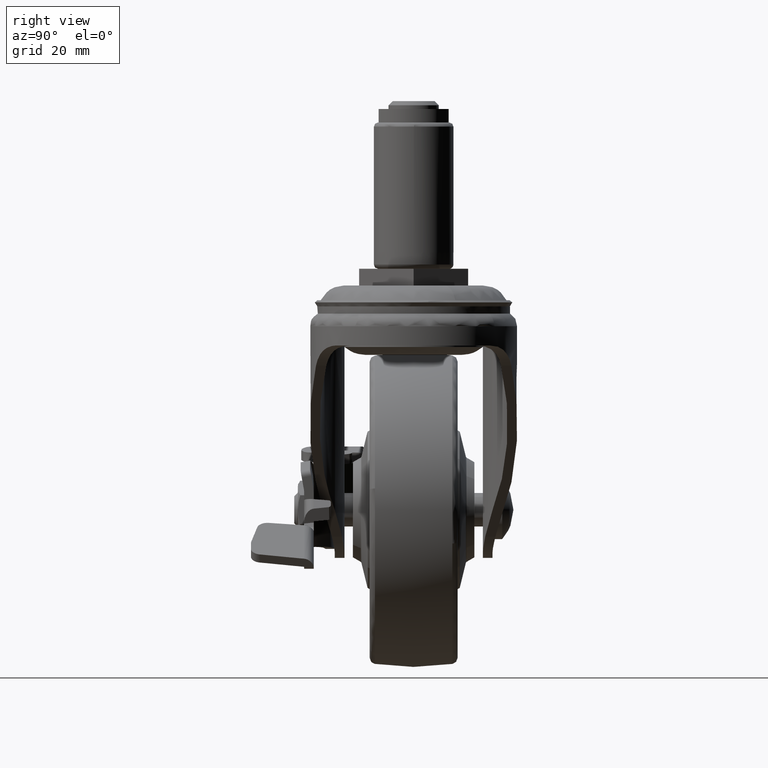
[diagram: clean part render]
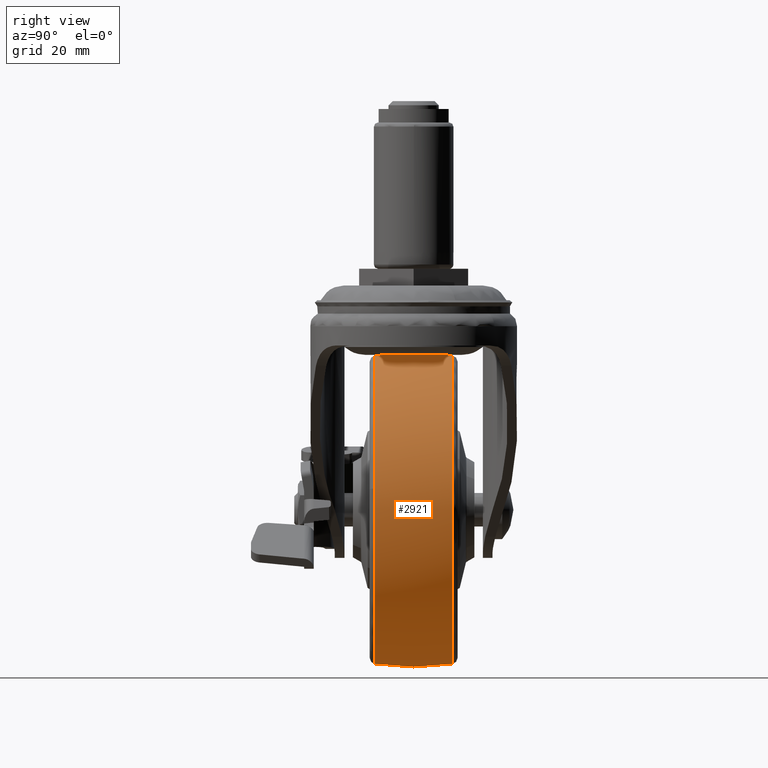
[diagram: same view with one face highlighted and labeled with its STEP entity id]
A machine part, right view. The second image highlights one B-rep face of the part: STEP entity #2921.
In plain terms, the highlighted face is a freeform B-spline surface patch.
Its self-contained STEP definition (entity closure, byte-faithful):
#2059=CARTESIAN_POINT('',(-25.0,9.230739119325698,-20.714632487062062));
#2060=VERTEX_POINT('',#2059);
#2077=CARTESIAN_POINT('',(10.894347431094950,9.230757639118954,-65.549100780943292));
#2078=VERTEX_POINT('',#2077);
#2079=CARTESIAN_POINT('',(10.894347431094950,9.230757639118954,-65.549100780943292));
#2080=CARTESIAN_POINT('',(11.382701974570249,9.230756744074689,-63.372309758172051));
#2081=CARTESIAN_POINT('',(11.827760479138320,9.230755338301995,-59.954848230577973));
#2082=CARTESIAN_POINT('',(11.774480901627671,9.230753216807116,-54.800707368002662));
#2083=CARTESIAN_POINT('',(11.120334110106990,9.230751144258019,-49.768182816137710));
#2084=CARTESIAN_POINT('',(9.683052751946716,9.230749135377884,-44.893865896167299));
#2085=CARTESIAN_POINT('',(7.425094527471202,9.230747067884369,-39.880826859736601));
#2086=CARTESIAN_POINT('',(4.773024856790674,9.230745320503417,-35.647302662544789));
#2087=CARTESIAN_POINT('',(0.776616494826311,9.230743413233489,-31.031349552262551));
#2088=CARTESIAN_POINT('',(-3.719916727387318,9.230741857821784,-27.272516106181339));
#2089=CARTESIAN_POINT('',(-8.709965495961042,9.230740659564363,-24.383641218926702));
#2090=CARTESIAN_POINT('',(-13.172346042401561,9.230739907374515,-22.576160417624951));
#2091=CARTESIAN_POINT('',(-18.479075642799199,9.230739302612705,-21.130663165699531));
#2092=CARTESIAN_POINT('',(-22.425853447630761,9.230739123925304,-20.714248035919240));
#2093=CARTESIAN_POINT('',(-25.0,9.230739119325698,-20.714632487062062));
#2094=B_SPLINE_CURVE_WITH_KNOTS('',3,(#2079,#2080,#2081,#2082,#2083,#2084,#2085,#2086,#2087,#2088,#2089,#2090,#2091,#2092,#2093),.UNSPECIFIED.,.F.,.U.,(4,1,1,1,1,1,1,1,1,1,1,1,4),(0.000000145995187,6.692643585842596,10.296431909245680,15.444694552943581,21.879999692063208,25.483759985023401,31.919065487761738,36.809842974787067,43.759971776332591,49.423039943853638,54.056477874854707,58.175040663074093,65.897384587277813),.UNSPECIFIED.);
#2095=EDGE_CURVE('',#2078,#2060,#2094,.T.);
#2151=CARTESIAN_POINT('',(-25.0,9.230769230769241,-94.286014824608401));
#2152=VERTEX_POINT('',#2151);
#2153=CARTESIAN_POINT('',(-25.0,9.230769230769241,-94.286014824608401));
#2154=CARTESIAN_POINT('',(-22.930475375956700,9.230769236804825,-94.286181185459142));
#2155=CARTESIAN_POINT('',(-19.632251891279100,9.230769132654956,-94.006897920833964));
#2156=CARTESIAN_POINT('',(-14.449095781213330,9.230768678405935,-92.854007673324915));
#2157=CARTESIAN_POINT('',(-9.939679916825652,9.230768019965737,-91.204160265475011));
#2158=CARTESIAN_POINT('',(-5.322713731877027,9.230767017038119,-88.707089286809847));
#2159=CARTESIAN_POINT('',(-1.439951526310229,9.230765881797085,-85.890104002636846));
#2160=CARTESIAN_POINT('',(2.319582683828077,9.230764439938415,-82.320583477760039));
#2161=CARTESIAN_POINT('',(5.578268663904385,9.230762771595899,-78.198102611371169));
#2162=CARTESIAN_POINT('',(8.791912335745248,9.230760489100392,-72.566868318128371));
#2163=CARTESIAN_POINT('',(10.286470031651030,9.230758741778576,-68.262822631787827));
#2164=CARTESIAN_POINT('',(10.894347431094950,9.230757639118954,-65.549100780943292));
#2165=B_SPLINE_CURVE_WITH_KNOTS('',3,(#2153,#2154,#2155,#2156,#2157,#2158,#2159,#2160,#2161,#2162,#2163,#2164),.UNSPECIFIED.,.F.,.U.,(4,1,1,1,1,1,1,1,1,4),(0.000000084547054,6.208546350610291,9.894880500244248,15.909437257245131,20.565863147434889,25.610258478200532,30.266690283069892,36.087236359181858,41.325732495700763,49.668462223385163),.UNSPECIFIED.);
#2166=EDGE_CURVE('',#2152,#2078,#2165,.T.);
#2168=CARTESIAN_POINT('',(-61.539659336711949,9.230755759686105,-53.252932426504273));
#2169=VERTEX_POINT('',#2168);
#2170=CARTESIAN_POINT('',(-61.539659336711949,9.230755759686105,-53.252932426504273));
#2171=CARTESIAN_POINT('',(-61.735581029046102,9.230756036276178,-54.937976688555821));
#2172=CARTESIAN_POINT('',(-61.901328681915480,9.230756660913375,-58.496985987810767));
#2173=CARTESIAN_POINT('',(-61.352295911296252,9.230757769005669,-64.059845319919106));
#2174=CARTESIAN_POINT('',(-59.728033698324339,9.230759167978246,-70.253842188208040));
#2175=CARTESIAN_POINT('',(-57.024692948617322,9.230760657557672,-75.981772269611938));
#2176=CARTESIAN_POINT('',(-53.750790814821151,9.230762038903905,-80.610511213776576));
#2177=CARTESIAN_POINT('',(-50.244039728617871,9.230763308276774,-84.420368133504496));
#2178=CARTESIAN_POINT('',(-45.674905464666921,9.230764741667265,-88.179948474379714));
#2179=CARTESIAN_POINT('',(-40.555192667898581,9.230766093406579,-91.003311937754148));
#2180=CARTESIAN_POINT('',(-35.614230816555533,9.230767228353324,-92.801854983506871));
#2181=CARTESIAN_POINT('',(-30.816131486319051,9.230768223062166,-93.961713663580809));
#2182=CARTESIAN_POINT('',(-27.181082948316710,9.230768875182406,-94.286241713769286));
#2183=CARTESIAN_POINT('',(-25.0,9.230769230769241,-94.286014824608401));
#2184=B_SPLINE_CURVE_WITH_KNOTS('',3,(#2170,#2171,#2172,#2173,#2174,#2175,#2176,#2177,#2178,#2179,#2180,#2181,#2182,#2183),.UNSPECIFIED.,.F.,.U.,(4,1,1,1,1,1,1,1,1,1,1,4),(0.000000141693874,5.089196690614344,10.663069850829469,16.721673767069920,24.234340966993230,29.565899659797719,33.685611970444043,39.744223093194137,47.256899337951438,51.134415904930961,55.496615459773423,62.039826390163888),.UNSPECIFIED.);
#2185=EDGE_CURVE('',#2169,#2152,#2184,.T.);
#2233=CARTESIAN_POINT('',(-11.542712536616570,-9.230769232013355,-91.736101387955358));
#2234=VERTEX_POINT('',#2233);
#2235=CARTESIAN_POINT('',(11.434805798915271,-9.230769224324156,-52.431615243759872));
#2236=VERTEX_POINT('',#2235);
#2237=CARTESIAN_POINT('',(-11.542712536616570,-9.230769232013355,-91.736101387955358));
#2238=CARTESIAN_POINT('',(-9.817525929453149,-9.230769232179462,-91.058024980956787));
#2239=CARTESIAN_POINT('',(-5.892567527067794,-9.230769232441762,-89.161699030438967));
#2240=CARTESIAN_POINT('',(-0.898975228454584,-9.230769232380313,-85.541107128316440));
#2241=CARTESIAN_POINT('',(3.155894794956588,-9.230769231920894,-81.348974213194623));
#2242=CARTESIAN_POINT('',(6.225946417030606,-9.230769231243452,-77.167284034483814));
#2243=CARTESIAN_POINT('',(8.418937996914403,-9.230769230408237,-73.106195320657577));
#2244=CARTESIAN_POINT('',(10.038958963857420,-9.230769229406409,-68.929491924193314));
#2245=CARTESIAN_POINT('',(11.288355158322080,-9.230769228170749,-64.292943328589743));
#2246=CARTESIAN_POINT('',(11.948610944155201,-9.230769226485011,-58.684600865256627));
#2247=CARTESIAN_POINT('',(11.716771990625730,-9.230769225050068,-54.457527515422932));
#2248=CARTESIAN_POINT('',(11.434805798915271,-9.230769224324156,-52.431615243759872));
#2249=B_SPLINE_CURVE_WITH_KNOTS('',3,(#2237,#2238,#2239,#2240,#2241,#2242,#2243,#2244,#2245,#2246,#2247,#2248),.UNSPECIFIED.,.F.,.U.,(4,1,1,1,1,1,1,1,1,4),(0.000000082379927,5.561015897858951,13.039705629081210,18.409018522449720,23.011299067748471,28.572253727463110,32.215714225410792,36.434467100989821,42.954335521078569,49.090651230183333),.UNSPECIFIED.);
#2250=EDGE_CURVE('',#2234,#2236,#2249,.T.);
#2329=CARTESIAN_POINT('',(-25.0,-9.230769230769241,-94.286014824608401));
#2330=VERTEX_POINT('',#2329);
#2331=CARTESIAN_POINT('',(-25.0,-9.230769230769241,-94.286014824608401));
#2332=CARTESIAN_POINT('',(-22.344993131486689,-9.230769230769017,-94.286474257577211));
#2333=CARTESIAN_POINT('',(-17.752849500590319,-9.230769231012948,-93.786538795154456));
#2334=CARTESIAN_POINT('',(-13.345791311857811,-9.230769231667512,-92.444937906043080));
#2335=CARTESIAN_POINT('',(-11.542712536616570,-9.230769232013355,-91.736101387955358));
#2336=B_SPLINE_CURVE_WITH_KNOTS('',3,(#2331,#2332,#2333,#2334,#2335),.UNSPECIFIED.,.F.,.U.,(4,1,4),(7.267476E-009,7.964905922737393,13.777137484971011),.UNSPECIFIED.);
#2337=EDGE_CURVE('',#2330,#2234,#2336,.T.);
#2402=CARTESIAN_POINT('',(-25.0,-9.230768389121424,-20.714637044347430));
#2403=VERTEX_POINT('',#2402);
#2404=CARTESIAN_POINT('',(11.434805798915271,-9.230769224324156,-52.431615243759872));
#2405=CARTESIAN_POINT('',(11.132463438096281,-9.230769217298034,-50.256769456358768));
#2406=CARTESIAN_POINT('',(10.354321895942761,-9.230769199327096,-46.901221837272253));
#2407=CARTESIAN_POINT('',(8.576250456173829,-9.230769158414493,-42.285111255225253));
#2408=CARTESIAN_POINT('',(6.577885556872193,-9.230769112500887,-38.442612371998521));
#2409=CARTESIAN_POINT('',(4.073171004477373,-9.230769055012901,-34.824354223156782));
#2410=CARTESIAN_POINT('',(0.890718065232994,-9.230768982019095,-31.217703046296080));
#2411=CARTESIAN_POINT('',(-3.002739658490394,-9.230768892768628,-27.828268553047359));
#2412=CARTESIAN_POINT('',(-7.202497763952917,-9.230768796547714,-25.197699744972262));
#2413=CARTESIAN_POINT('',(-11.684260042446230,-9.230768693901894,-23.107017613826240));
#2414=CARTESIAN_POINT('',(-17.315132655731912,-9.230768564977637,-21.282132774914281));
#2415=CARTESIAN_POINT('',(-22.118022099241671,-9.230768455060346,-20.713951240367741));
#2416=CARTESIAN_POINT('',(-25.0,-9.230768389121424,-20.714637044347430));
#2417=B_SPLINE_CURVE_WITH_KNOTS('',3,(#2404,#2405,#2406,#2407,#2408,#2409,#2410,#2411,#2412,#2413,#2414,#2415,#2416),.UNSPECIFIED.,.F.,.U.,(4,1,1,1,1,1,1,1,1,1,4),(0.000000099648680,6.587235028346484,10.292563931743800,14.821319829228370,19.555910996128819,23.467111419731481,29.230901731002419,34.994761503449311,38.288391420518003,44.052246221526921,52.698005117187897),.UNSPECIFIED.);
#2418=EDGE_CURVE('',#2236,#2403,#2417,.T.);
#2420=CARTESIAN_POINT('',(-61.539654894466757,-9.230784582692095,-53.252933077816962));
#2421=VERTEX_POINT('',#2420);
#2437=CARTESIAN_POINT('',(-61.539654894466757,-9.230784582692095,-53.252933077816962));
#2438=CARTESIAN_POINT('',(-61.819823682548332,-9.230784132447356,-55.660139622846977));
#2439=CARTESIAN_POINT('',(-61.887811091497511,-9.230783298272014,-59.718319477252280));
#2440=CARTESIAN_POINT('',(-61.065207461493962,-9.230781992512087,-65.243421142227589));
#2441=CARTESIAN_POINT('',(-59.917145710980932,-9.230780934240480,-69.292659288841307));
#2442=CARTESIAN_POINT('',(-58.320987758556463,-9.230779807783879,-73.269637264096986));
#2443=CARTESIAN_POINT('',(-55.942191004016877,-9.230778443232858,-77.690705088829617));
#2444=CARTESIAN_POINT('',(-51.988578145649363,-9.230776634625899,-82.837471423724509));
#2445=CARTESIAN_POINT('',(-47.354463071464039,-9.230774923073030,-86.913140253918129));
#2446=CARTESIAN_POINT('',(-42.565665377803860,-9.230773402265282,-89.936954376865771));
#2447=CARTESIAN_POINT('',(-37.497234986077842,-9.230771969184925,-92.291337170176263));
#2448=CARTESIAN_POINT('',(-31.462495083351460,-9.230770508092292,-93.919474560090251));
#2449=CARTESIAN_POINT('',(-27.019511152388191,-9.230769606009176,-94.286103557325177));
#2450=CARTESIAN_POINT('',(-25.0,-9.230769230769241,-94.286014824608401));
#2451=B_SPLINE_CURVE_WITH_KNOTS('',3,(#2437,#2438,#2439,#2440,#2441,#2442,#2443,#2444,#2445,#2446,#2447,#2448,#2449,#2450),.UNSPECIFIED.,.F.,.U.,(4,1,1,1,1,1,1,1,1,1,1,4),(0.000000141815377,7.270286455357905,12.117135204564660,16.721672934322090,19.872153901528261,24.961367091366849,31.746917941930640,39.259562442217529,43.379389025982022,48.710957319541123,55.981256839659167,62.039823300249950),.UNSPECIFIED.);
#2452=EDGE_CURVE('',#2421,#2330,#2451,.T.);
#2843=CARTESIAN_POINT('',(-61.387838472527854,-10.163946117968155,-53.270542859964060));
#2844=CARTESIAN_POINT('',(-62.249186561240656,-5.118963881490550,-53.170418319010892));
#2845=CARTESIAN_POINT('',(-62.249186561240641,6.429243E-015,-53.170418319010878));
#2846=CARTESIAN_POINT('',(-62.249186561240641,5.118955462237354,-53.170418319010885));
#2847=CARTESIAN_POINT('',(-61.387841285400960,10.163929642739484,-53.270542532990980));
#2848=CARTESIAN_POINT('',(-61.632852115478407,-10.163946117968154,-55.378338122293890));
#2849=CARTESIAN_POINT('',(-62.500000000000007,-5.118963881490548,-55.328107872862788));
#2850=CARTESIAN_POINT('',(-62.499999999999993,6.429243E-015,-55.328107872862788));
#2851=CARTESIAN_POINT('',(-62.499999999999986,5.118955462237354,-55.328107872862780));
#2852=CARTESIAN_POINT('',(-61.632854947291719,10.163929642739481,-55.378337958258797));
#2853=CARTESIAN_POINT('',(-61.632852115478421,-10.163946117968152,-57.500326000000094));
#2854=CARTESIAN_POINT('',(-62.500000000000007,-5.118963881490548,-57.500326000000101));
#2855=CARTESIAN_POINT('',(-62.500000000000000,6.429243E-015,-57.500326000000094));
#2856=CARTESIAN_POINT('',(-62.500000000000000,5.118955462237354,-57.500326000000094));
#2857=CARTESIAN_POINT('',(-61.632854947291712,10.163929642739484,-57.500326000000108));
#2858=CARTESIAN_POINT('',(-61.632852115478414,-10.163946117968150,-94.133178115478501));
#2859=CARTESIAN_POINT('',(-62.500000000000014,-5.118963881490547,-95.000326000000101));
#2860=CARTESIAN_POINT('',(-62.500000000000000,6.429243E-015,-95.000326000000086));
#2861=CARTESIAN_POINT('',(-62.500000000000000,5.118955462237353,-95.000326000000072));
#2862=CARTESIAN_POINT('',(-61.632854947291719,10.163929642739483,-94.133180947291791));
#2863=CARTESIAN_POINT('',(-25.0,-10.163946117968152,-94.133178115478501));
#2864=CARTESIAN_POINT('',(-25.000000000000004,-5.118963881490548,-95.000326000000086));
#2865=CARTESIAN_POINT('',(-25.0,6.429243E-015,-95.000326000000086));
#2866=CARTESIAN_POINT('',(-24.999999999999996,5.118955462237354,-95.000326000000086));
#2867=CARTESIAN_POINT('',(-24.999999999999996,10.163929642739484,-94.133180947291805));
#2868=CARTESIAN_POINT('',(11.632852115478409,-10.163946117968150,-94.133178115478501));
#2869=CARTESIAN_POINT('',(12.499999999999993,-5.118963881490547,-95.000326000000101));
#2870=CARTESIAN_POINT('',(12.499999999999993,6.429243E-015,-95.000326000000086));
#2871=CARTESIAN_POINT('',(12.499999999999993,5.118955462237353,-95.000326000000072));
#2872=CARTESIAN_POINT('',(11.632854947291705,10.163929642739483,-94.133180947291791));
#2873=CARTESIAN_POINT('',(11.632852115478407,-10.163946117968152,-57.500326000000094));
#2874=CARTESIAN_POINT('',(12.499999999999998,-5.118963881490548,-57.500326000000101));
#2875=CARTESIAN_POINT('',(12.500000000000000,6.429243E-015,-57.500326000000094));
#2876=CARTESIAN_POINT('',(12.499999999999998,5.118955462237354,-57.500326000000094));
#2877=CARTESIAN_POINT('',(11.632854947291715,10.163929642739484,-57.500326000000108));
#2878=CARTESIAN_POINT('',(11.632852115478409,-10.163946117968150,-20.867473884521694));
#2879=CARTESIAN_POINT('',(12.499999999999993,-5.118963881490547,-20.000326000000094));
#2880=CARTESIAN_POINT('',(12.499999999999993,6.429243E-015,-20.000326000000101));
#2881=CARTESIAN_POINT('',(12.499999999999993,5.118955462237353,-20.000326000000094));
#2882=CARTESIAN_POINT('',(11.632854947291705,10.163929642739483,-20.867471052708382));
#2883=CARTESIAN_POINT('',(-25.0,-10.163946117968152,-20.867473884521683));
#2884=CARTESIAN_POINT('',(-25.000000000000004,-5.118963881490548,-20.000326000000097));
#2885=CARTESIAN_POINT('',(-25.0,6.429243E-015,-20.000326000000101));
#2886=CARTESIAN_POINT('',(-24.999999999999996,5.118955462237354,-20.000326000000097));
#2887=CARTESIAN_POINT('',(-24.999999999999996,10.163929642739484,-20.867471052708389));
#2895=(BOUNDED_SURFACE()B_SPLINE_SURFACE(2,2,((#2843,#2848,#2853,#2858,#2863,#2868,#2873,#2878,#2883),(#2844,#2849,#2854,#2859,#2864,#2869,#2874,#2879,#2884),(#2845,#2850,#2855,#2860,#2865,#2870,#2875,#2880,#2885),(#2846,#2851,#2856,#2861,#2866,#2871,#2876,#2881,#2886),(#2847,#2852,#2857,#2862,#2867,#2872,#2877,#2882,#2887)),.UNSPECIFIED.,.F.,.F.,.U.)B_SPLINE_SURFACE_WITH_KNOTS((3,2,3),(3,2,2,2,3),(0.0,10.428959245181041,20.857901773533939),(0.0,4.970561711536947,67.102596067501210,129.234630423465490,191.366664779429700),.UNSPECIFIED.)GEOMETRIC_REPRESENTATION_ITEM()RATIONAL_B_SPLINE_SURFACE(((0.915488160747997,0.934319057011548,0.956736789767832,0.676515071855482,0.956736789767832,0.676515071855482,0.956736789767832,0.676515071855482,0.956736789767832),(0.932570432115114,0.951752697728758,0.974588727313769,0.689138297951533,0.974588727313769,0.689138297951533,0.974588727313769,0.689138297951533,0.974588727313769),(0.956886126402807,0.976568547383107,1.0,0.707106781186548,1.0,0.707106781186548,1.0,0.707106781186548,1.0),(0.932570471091322,0.951752737506677,0.974588768046106,0.689138326753645,0.974588768046106,0.689138326753645,0.974588768046106,0.689138326753645,0.974588768046106),(0.915488215511179,0.934319112901166,0.956736846998446,0.676515112323638,0.956736846998446,0.676515112323638,0.956736846998446,0.676515112323638,0.956736846998446)))REPRESENTATION_ITEM('')SURFACE());
#2896=ORIENTED_EDGE('',*,*,#2185,.T.);
#2897=ORIENTED_EDGE('',*,*,#2166,.T.);
#2898=ORIENTED_EDGE('',*,*,#2095,.T.);
#2899=CARTESIAN_POINT('',(-25.0,-9.230768389121424,-20.714637044347430));
#2900=CARTESIAN_POINT('',(-24.999999999999918,-6.559919379880221,-20.298672794125530));
#2901=CARTESIAN_POINT('',(-25.000000000000210,-0.390765875202501,-19.761532904755580));
#2902=CARTESIAN_POINT('',(-24.999999999999869,5.796809898517352,-20.179610995722388));
#2903=CARTESIAN_POINT('',(-25.0,9.230739119325698,-20.714632487062062));
#2904=B_SPLINE_CURVE_WITH_KNOTS('',3,(#2899,#2900,#2901,#2902,#2903),.UNSPECIFIED.,.F.,.U.,(4,1,4),(4.002782E-009,8.109136044947675,18.535138485283660),.UNSPECIFIED.);
#2905=EDGE_CURVE('',#2403,#2060,#2904,.T.);
#2906=ORIENTED_EDGE('',*,*,#2905,.F.);
#2907=ORIENTED_EDGE('',*,*,#2418,.F.);
#2908=ORIENTED_EDGE('',*,*,#2250,.F.);
#2909=ORIENTED_EDGE('',*,*,#2337,.F.);
#2910=ORIENTED_EDGE('',*,*,#2452,.F.);
#2911=CARTESIAN_POINT('',(-61.539654894466757,-9.230784582692095,-53.252933077816962));
#2912=CARTESIAN_POINT('',(-62.041462087808178,-5.987619752632106,-53.194602135005198));
#2913=CARTESIAN_POINT('',(-62.486497904547520,0.195361454793066,-53.142870371793599));
#2914=CARTESIAN_POINT('',(-61.982369325751222,6.369128341110021,-53.201471087557231));
#2915=CARTESIAN_POINT('',(-61.539659336711949,9.230755759686105,-53.252932426504273));
#2916=B_SPLINE_CURVE_WITH_KNOTS('',3,(#2911,#2912,#2913,#2914,#2915),.UNSPECIFIED.,.F.,.U.,(4,1,4),(4.002295E-009,9.846798832057004,18.535171714914060),.UNSPECIFIED.);
#2917=EDGE_CURVE('',#2421,#2169,#2916,.T.);
#2918=ORIENTED_EDGE('',*,*,#2917,.T.);
#2919=EDGE_LOOP('',(#2896,#2897,#2898,#2906,#2907,#2908,#2909,#2910,#2918));
#2920=FACE_OUTER_BOUND('',#2919,.T.);
#2921=ADVANCED_FACE('',(#2920),#2895,.T.);